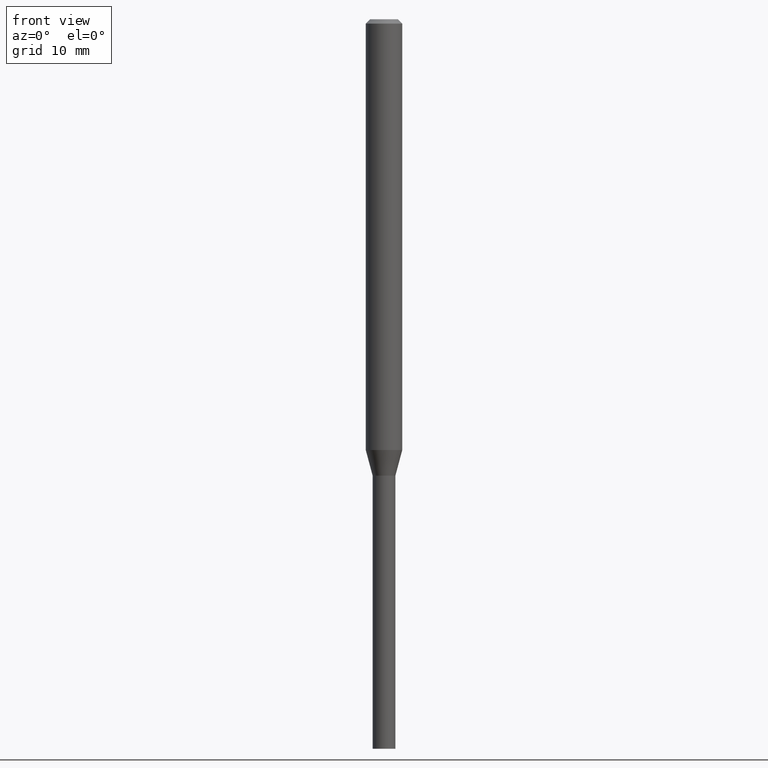
[diagram: clean part render]
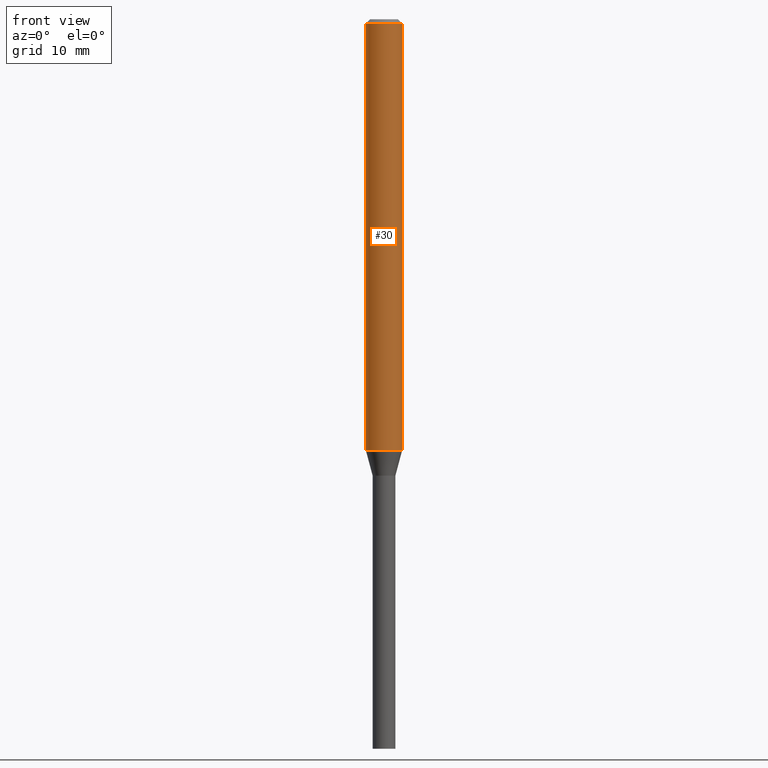
[diagram: same view with one face highlighted and labeled with its STEP entity id]
A machine part, front view. The second image highlights one B-rep face of the part: STEP entity #30.
In plain terms, the highlighted cylindrical surface (edge-blend (fillet) strip) has radius 1.5875 mm, axis along (-0, 0, 1).
Its self-contained STEP definition (entity closure, byte-faithful):
#1 = CARTESIAN_POINT ( 'NONE',  ( 0.000000000000000000, 0.000000000000000000, 0.000000000000000000 ) ) ;
#14 = CARTESIAN_POINT ( 'NONE',  ( 0.06250000000000000000, -4.364351673553916694E-16, 3.047610484872459871E-30 ) ) ;
#16 = LINE ( 'NONE', #14, #52 ) ;
#30 = ADVANCED_FACE ( 'NONE', ( #352 ), #402, .T. ) ;
#31 = DIRECTION ( 'NONE',  ( -2.445468806185136597E-29, 3.491481338843145583E-15, 1.000000000000000000 ) ) ;
#36 = VERTEX_POINT ( 'NONE', #67 ) ;
#42 = VERTEX_POINT ( 'NONE', #223 ) ;
#45 = ORIENTED_EDGE ( 'NONE', *, *, #164, .T. ) ;
#52 = VECTOR ( 'NONE', #132, 39.37007874015748143 ) ;
#63 = AXIS2_PLACEMENT_3D ( 'NONE', #1, #31, #364 ) ;
#64 = DIRECTION ( 'NONE',  ( 1.000000000000000000, -6.982962677686266711E-15, 0.000000000000000000 ) ) ;
#67 = CARTESIAN_POINT ( 'NONE',  ( 0.06250000000000000000, -5.590897916175398580E-15, -1.476296806022129982 ) ) ;
#98 = AXIS2_PLACEMENT_3D ( 'NONE', #361, #214, #219 ) ;
#101 = VERTEX_POINT ( 'NONE', #451 ) ;
#105 = DIRECTION ( 'NONE',  ( -2.445468806185136597E-29, 3.491481338843145583E-15, 1.000000000000000000 ) ) ;
#125 = ORIENTED_EDGE ( 'NONE', *, *, #192, .F. ) ;
#132 = DIRECTION ( 'NONE',  ( -2.445468806185136877E-29, 3.491481338843145188E-15, 1.000000000000000000 ) ) ;
#137 = CARTESIAN_POINT ( 'NONE',  ( -0.06250000000000000000, -2.159328274601264181E-15, -0.01499999999999999944 ) ) ;
#164 = EDGE_CURVE ( 'NONE', #36, #101, #16, .T. ) ;
#190 = ORIENTED_EDGE ( 'NONE', *, *, #326, .F. ) ;
#192 = EDGE_CURVE ( 'NONE', #42, #222, #421, .T. ) ;
#197 = CARTESIAN_POINT ( 'NONE',  ( -0.06250000000000000000, 4.440892098500626162E-16, -3.074334431409316114E-30 ) ) ;
#212 = CIRCLE ( 'NONE', #227, 0.06250000000000000000 ) ;
#214 = DIRECTION ( 'NONE',  ( -2.445468806185136597E-29, 3.491481338843145583E-15, 1.000000000000000000 ) ) ;
#219 = DIRECTION ( 'NONE',  ( 1.000000000000000000, -6.982962677686262766E-15, 0.000000000000000000 ) ) ;
#222 = VERTEX_POINT ( 'NONE', #137 ) ;
#223 = CARTESIAN_POINT ( 'NONE',  ( -0.06250000000000000000, -4.710373538969943505E-15, -1.476296806022129982 ) ) ;
#227 = AXIS2_PLACEMENT_3D ( 'NONE', #432, #105, #64 ) ;
#264 = VECTOR ( 'NONE', #276, 39.37007874015748143 ) ;
#271 = EDGE_CURVE ( 'NONE', #42, #36, #329, .T. ) ;
#276 = DIRECTION ( 'NONE',  ( -2.445468806185136877E-29, 3.491481338843145188E-15, 1.000000000000000000 ) ) ;
#290 = EDGE_LOOP ( 'NONE', ( #125, #304, #45, #190 ) ) ;
#304 = ORIENTED_EDGE ( 'NONE', *, *, #271, .T. ) ;
#326 = EDGE_CURVE ( 'NONE', #222, #101, #212, .T. ) ;
#329 = CIRCLE ( 'NONE', #98, 0.06250000000000000000 ) ;
#352 = FACE_OUTER_BOUND ( 'NONE', #290, .T. ) ;
#361 = CARTESIAN_POINT ( 'NONE',  ( 3.610237787797868067E-29, -5.154462748820006121E-15, -1.476296806022129982 ) ) ;
#364 = DIRECTION ( 'NONE',  ( 1.000000000000000000, -6.982962677686266711E-15, 4.876176775795935793E-29 ) ) ;
#402 = CYLINDRICAL_SURFACE ( 'NONE', #63, 0.06250000000000000000 ) ;
#421 = LINE ( 'NONE', #197, #264 ) ;
#432 = CARTESIAN_POINT ( 'NONE',  ( 3.668203209277705088E-31, -5.237222008264718399E-17, -0.01499999999999999944 ) ) ;
#451 = CARTESIAN_POINT ( 'NONE',  ( 0.06250000000000000000, -4.888073874380388472E-16, -0.01499999999999999944 ) ) ;